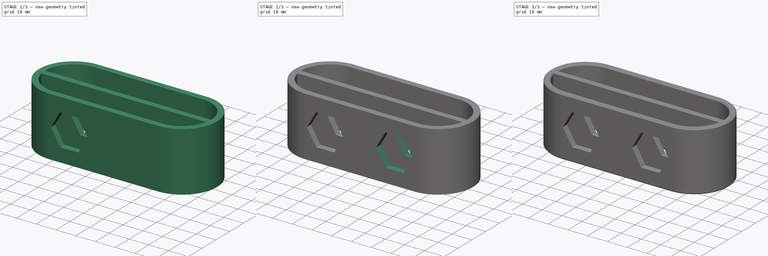
[diagram: build sequence overview — one tinted view per stage of 3, left to right]
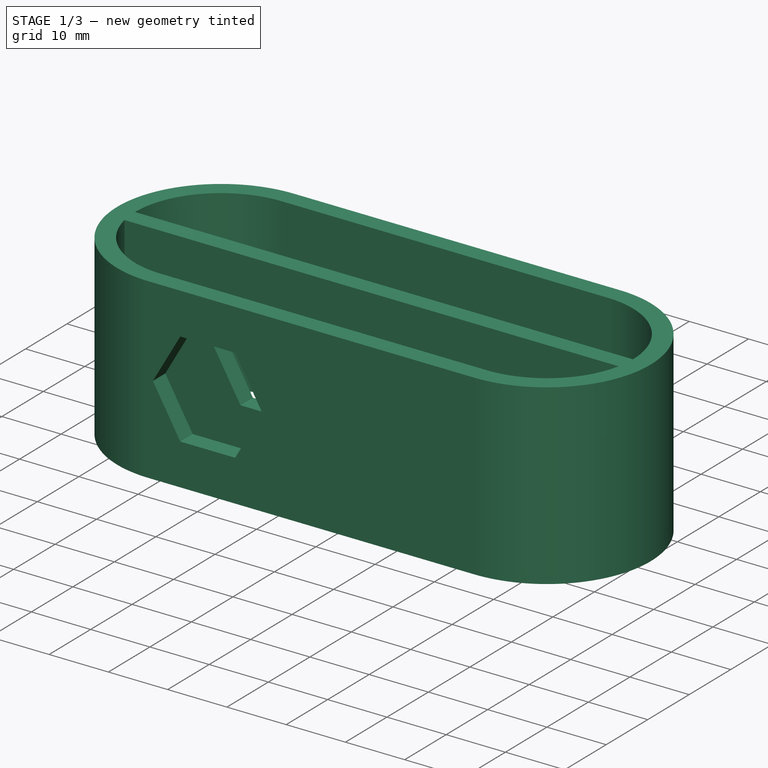
[diagram: stage 1 of 3 — iso view after this stage's code; geometry added in this stage tinted green]
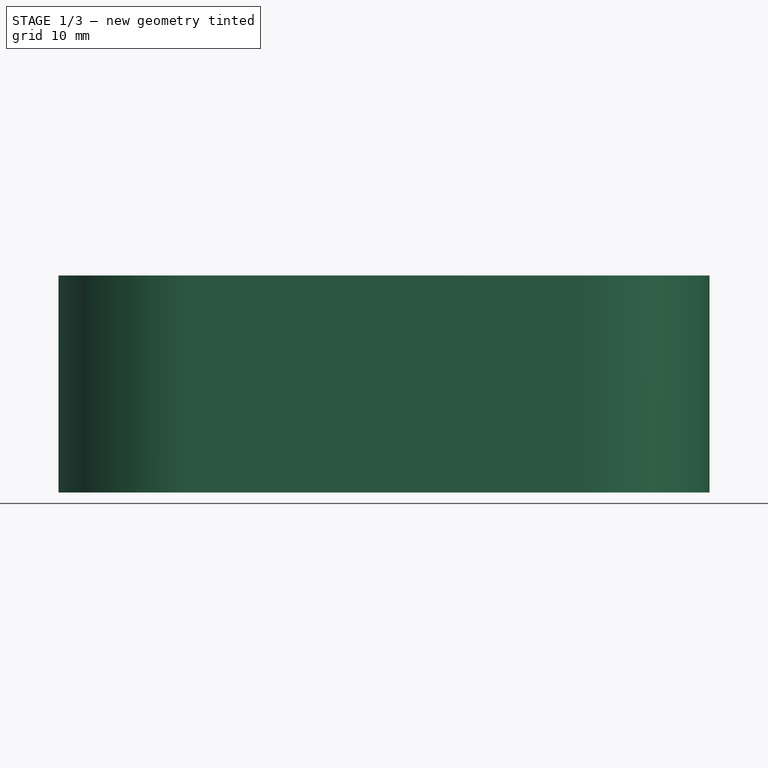
[diagram: stage 1 of 3 — front view after this stage's code; geometry added in this stage tinted green]
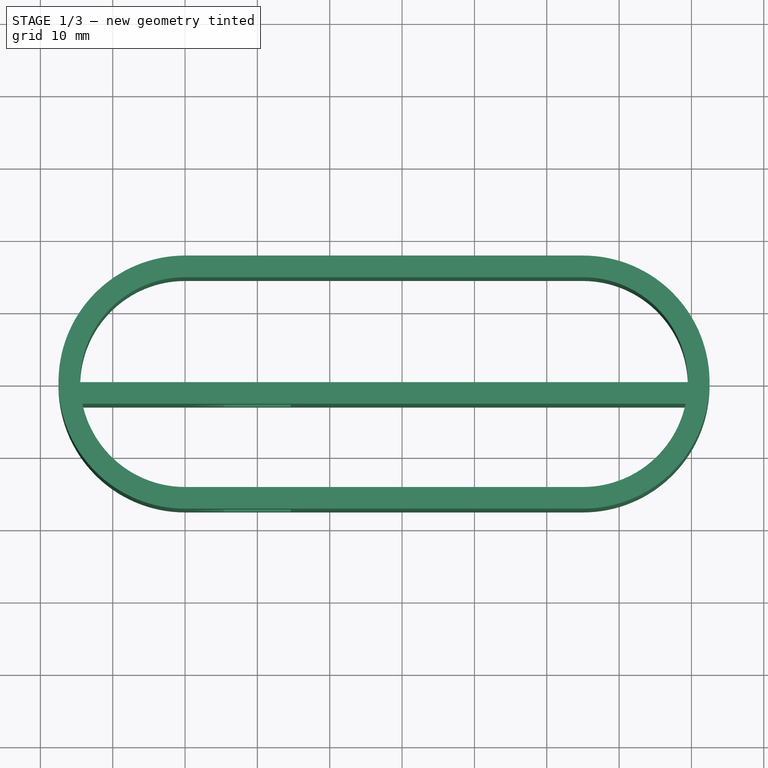
[diagram: stage 1 of 3 — top view after this stage's code; geometry added in this stage tinted green]
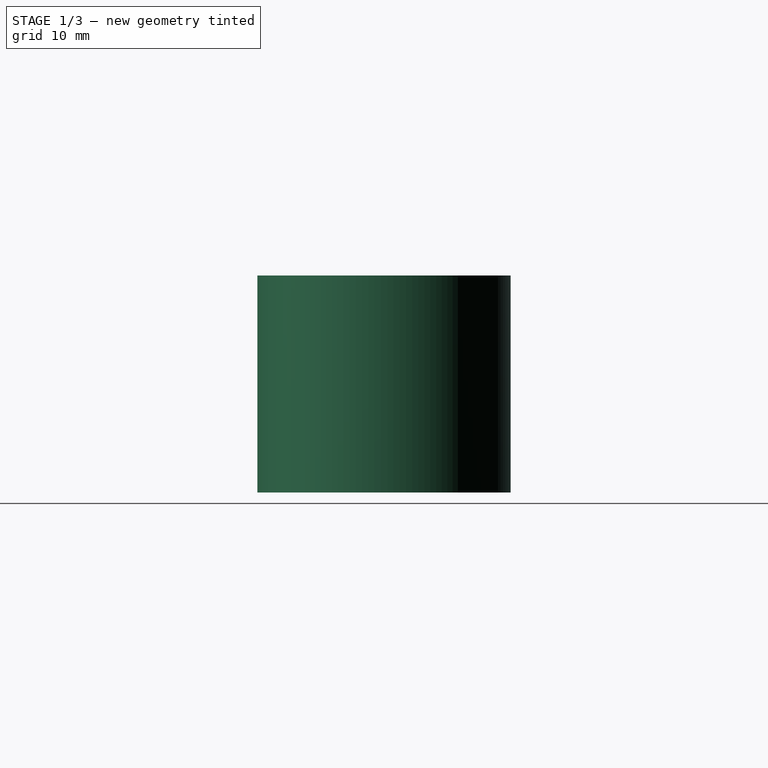
[diagram: stage 1 of 3 — right view after this stage's code; geometry added in this stage tinted green]
FCSTD DOCUMENT  (FreeCAD 0.18R16093 (Git))
Label: pb-v5-pour2
License: All rights reserved
LicenseURL: http://en.wikipedia.org/wiki/All_rights_reserved
objects: Sketcher::SketchObject×3, PartDesign::Pad×2, PartDesign::LinearPattern×2, PartDesign::Pocket×1, PartDesign::Draft×1, PartDesign::Chamfer×1, PartDesign::Body×1
note: 14 computed .brp shape members not serialized (recipe doc carries the construction recipe); baked Part::Feature solids carry a one-line shape summary decoded from their .brp

FEATURE [Sketcher::SketchObject] Sketch
  MapMode = 5
  Support = -> [XY_Plane]
  sketch-geometry (12):
    g0: ArcOfCircle CenterX=0 CenterY=0 CenterZ=0 NormalX=0 NormalY=0 NormalZ=1 AngleXU=0 Radius=14.5 StartAngle=1.5708 EndAngle=3.14159
    g1: ArcOfCircle CenterX=55 CenterY=-6e-16 CenterZ=0 NormalX=0 NormalY=0 NormalZ=1 AngleXU=0 Radius=14.5 StartAngle=4.71239 EndAngle=6.07478
    g2: LineSegment StartX=-2.7e-15 StartY=-14.5 StartZ=0 EndX=55 EndY=-14.5 EndZ=0
    g3: LineSegment StartX=-2.3e-15 StartY=14.5 StartZ=0 EndX=55 EndY=14.5 EndZ=0
    g4: ArcOfCircle CenterX=0 CenterY=0 CenterZ=0 NormalX=0 NormalY=0 NormalZ=1 AngleXU=0 Radius=17.5 StartAngle=1.5708 EndAngle=4.71239
    g5: ArcOfCircle CenterX=55 CenterY=-6e-16 CenterZ=0 NormalX=0 NormalY=0 NormalZ=1 AngleXU=0 Radius=17.5 StartAngle=4.71239 EndAngle=7.85398
    g6: LineSegment StartX=1.0693e-12 StartY=-17.5 StartZ=0 EndX=55 EndY=-17.5 EndZ=0
    g7: LineSegment StartX=-4.9e-15 StartY=17.5 StartZ=0 EndX=55 EndY=17.5 EndZ=0
    g8: LineSegment StartX=-14.5 StartY=0 StartZ=0 EndX=69.5 EndY=0 EndZ=0
    g9: LineSegment StartX=-14.1863 StartY=-3 StartZ=0 EndX=69.1863 EndY=-3 EndZ=0
    g10: ArcOfCircle CenterX=0 CenterY=0 CenterZ=0 NormalX=0 NormalY=0 NormalZ=1 AngleXU=0 Radius=14.5 StartAngle=3.34999 EndAngle=4.71239
    g11: ArcOfCircle CenterX=55 CenterY=-6e-16 CenterZ=0 NormalX=0 NormalY=0 NormalZ=1 AngleXU=0 Radius=14.5 StartAngle=0 EndAngle=1.5708
  constraints (31):
    c: Tangent(g0,g3) = 1.5708
    c: Coincident(g10,g2) = -1.5708
    c: Tangent(g2,g1) = -1.5708
    c: Coincident(g3,g11) = 1.5708
    c: Horizontal(g2)
    c: Equal(g0,g1)
    c: Coincident(g0,g-1)
    c: Tangent(g4,g7) = 1.5708
    c: Tangent(g4,g6) = -1.5708
    c: Tangent(g6,g5) = -1.5708
    c: Tangent(g7,g5) = 1.5708
    c: Horizontal(g6)
    c: Coincident(g4,g0)
    c: Coincident(g5,g1)
    c: Horizontal(g8)
    c: Horizontal(g9)
    c: DistanceY(g0,g4) = 3
    c: DistanceY(g10,g0) = 29
    c: DistanceX(g4,g5) = 55
    c: Equal(g0,g10)
    c: Coincident(g0,g8)
    c: Coincident(g10,g9)
    c: Coincident(g0,g10)
    c: DistanceY(g9,g0) = 3
    c: PointOnObject(g0,g-1)
    c: PointOnObject(g2,g-2)
    c: Equal(g1,g11)
    c: Coincident(g1,g9)
    c: Coincident(g11,g8)
    c: Coincident(g1,g11)
    c: Horizontal(g3)
FEATURE [PartDesign::Pad] Pad
  Length = 30
  Length2 = 100
  Profile = -> Sketch
  Type = 0
FEATURE [Sketcher::SketchObject] Sketch001
  MapMode = 5
  Placement = pos=(0,-17.5,0) rot=(1,0,0;1.5708rad)
  Support = -> [Pad]
  sketch-geometry (7):
    g0: LineSegment StartX=19.25 StartY=15 StartZ=0 EndX=14.625 EndY=23.0107 EndZ=0
    g1: LineSegment StartX=14.625 StartY=23.0107 StartZ=0 EndX=5.375 EndY=23.0107 EndZ=0
    g2: LineSegment StartX=5.375 StartY=23.0107 StartZ=0 EndX=0.75 EndY=15 EndZ=0
    g3: LineSegment StartX=0.75 StartY=15 StartZ=0 EndX=5.375 EndY=6.98927 EndZ=0
    g4: LineSegment StartX=5.375 StartY=6.98927 StartZ=0 EndX=14.625 EndY=6.98927 EndZ=0
    g5: LineSegment StartX=14.625 StartY=6.98927 StartZ=0 EndX=19.25 EndY=15 EndZ=0
    g6: Circle [constr] CenterX=10 CenterY=15 CenterZ=0 NormalX=0 NormalY=0 NormalZ=1 AngleXU=0 Radius=9.25
  constraints (17):
    c: Coincident(g0,g1)
    c: Coincident(g1,g2)
    c: Coincident(g2,g3)
    c: Coincident(g3,g4)
    c: Coincident(g4,g5)
    c: Coincident(g5,g0)
    c: Equal(g0, g1-g5) x5
    c: PointOnObject(g0,g6)
    c: PointOnObject(g1,g6)
    c: PointOnObject(g2,g6)
    c: PointOnObject(g3,g6)
    c: PointOnObject(g4,g6)
    c: PointOnObject(g5,g6)
    c: Horizontal(g1)
    c: Diameter(g6) = 18.5
    c: DistanceY(g-1,g6) = 15
    c: DistanceX(g-1,g6) = 10
FEATURE [PartDesign::Pocket] Pocket
  BaseFeature = -> Pad
  Length = 0
  Length2 = 100
  Profile = -> Sketch001
  Type = 3
  UpToFace = -> Pad [Face7]
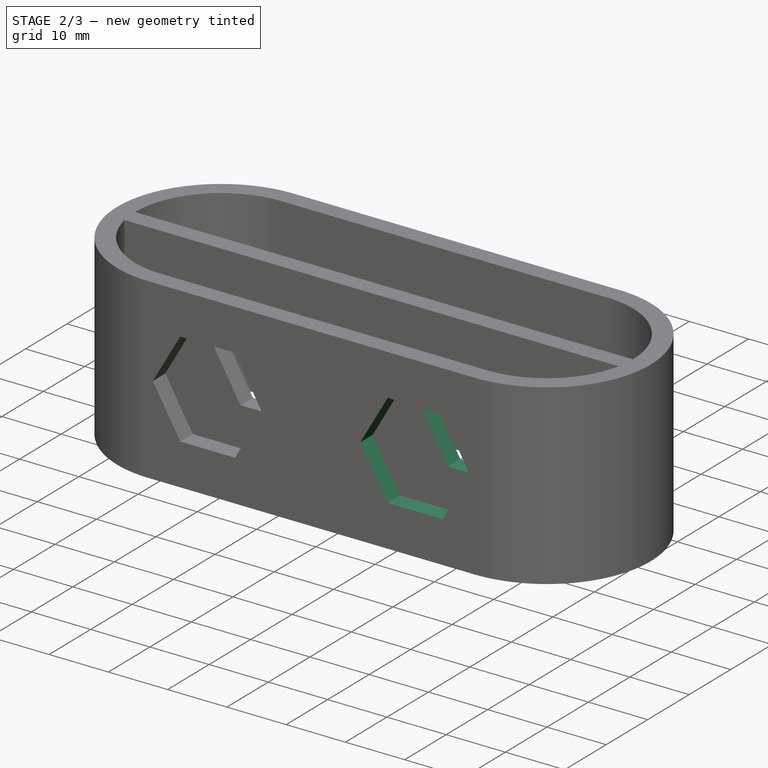
[diagram: stage 2 of 3 — iso view after this stage's code; geometry added in this stage tinted green]
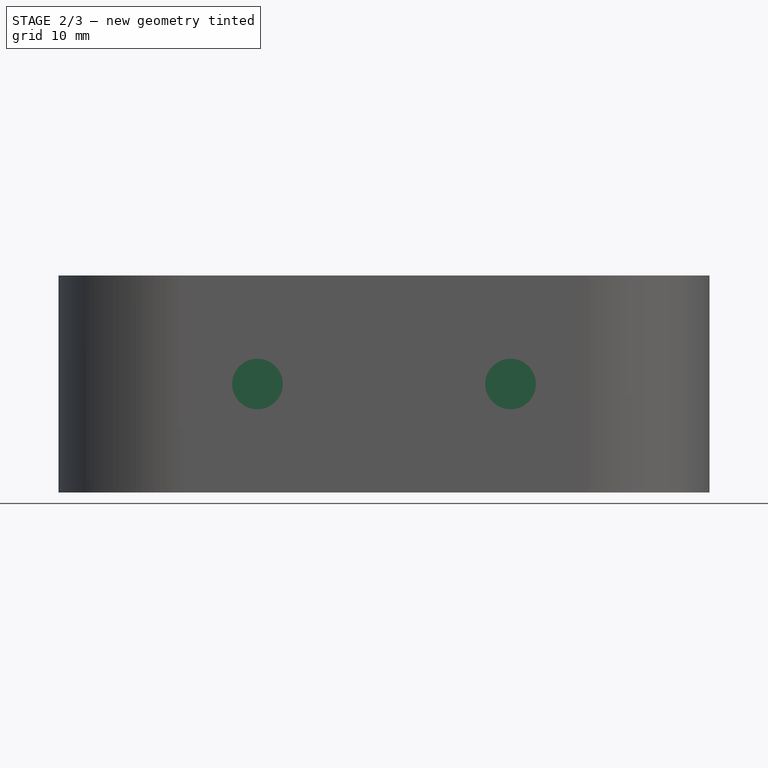
[diagram: stage 2 of 3 — front view after this stage's code; geometry added in this stage tinted green]
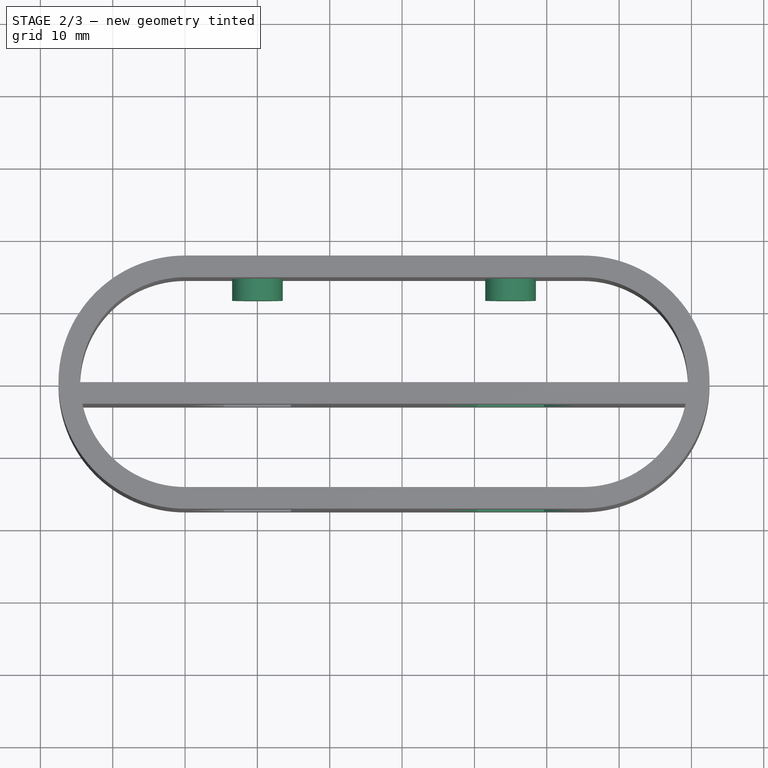
[diagram: stage 2 of 3 — top view after this stage's code; geometry added in this stage tinted green]
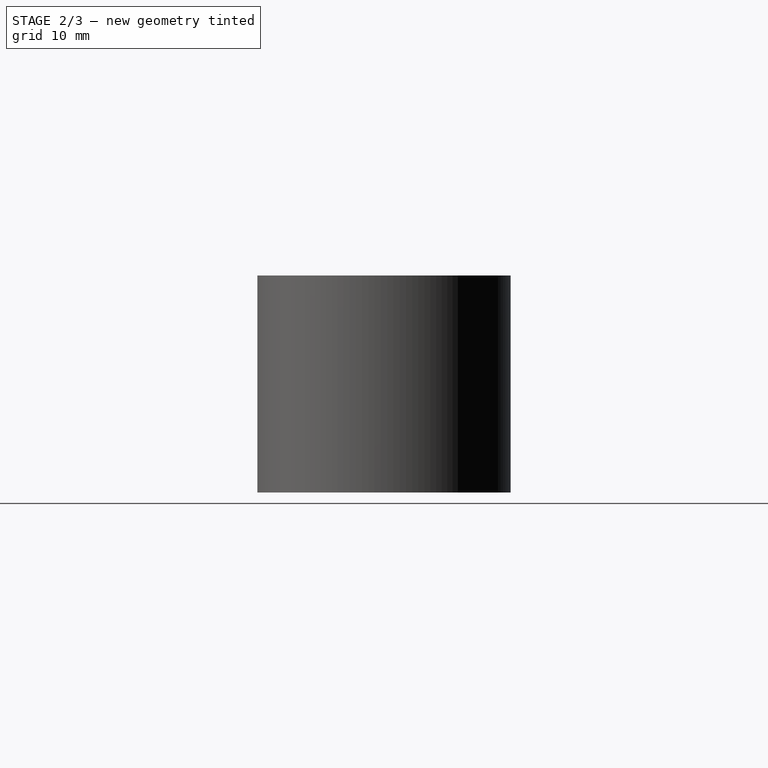
[diagram: stage 2 of 3 — right view after this stage's code; geometry added in this stage tinted green]
FEATURE [Sketcher::SketchObject] Sketch002
  MapMode = 5
  Placement = pos=(0,14.5,0) rot=(1,0,0;1.5708rad)
  sketch-geometry (1):
    g0: Circle CenterX=10 CenterY=15 CenterZ=0 NormalX=0 NormalY=0 NormalZ=1 AngleXU=0 Radius=3.5
  constraints (3):
    c: DistanceY(g-1,g0) = 15
    c: DistanceX(g-1,g0) = 10
    c: Diameter(g0) = 7
FEATURE [PartDesign::Pad] Pad001
  BaseFeature = -> Pocket
  Length = 3
  Length2 = 100
  Profile = -> Sketch002
  Type = 0
FEATURE [PartDesign::LinearPattern] LinearPattern
  BaseFeature = -> Pad001
  Direction = -> Sketch001 [H_Axis]
  Length = 35
  Occurrences = 2
  Originals = -> [Pocket]
FEATURE [PartDesign::LinearPattern] LinearPattern001
  BaseFeature = -> LinearPattern
  Direction = -> Sketch002 [H_Axis]
  Length = 35
  Occurrences = 2
  Originals = -> [Pad001]
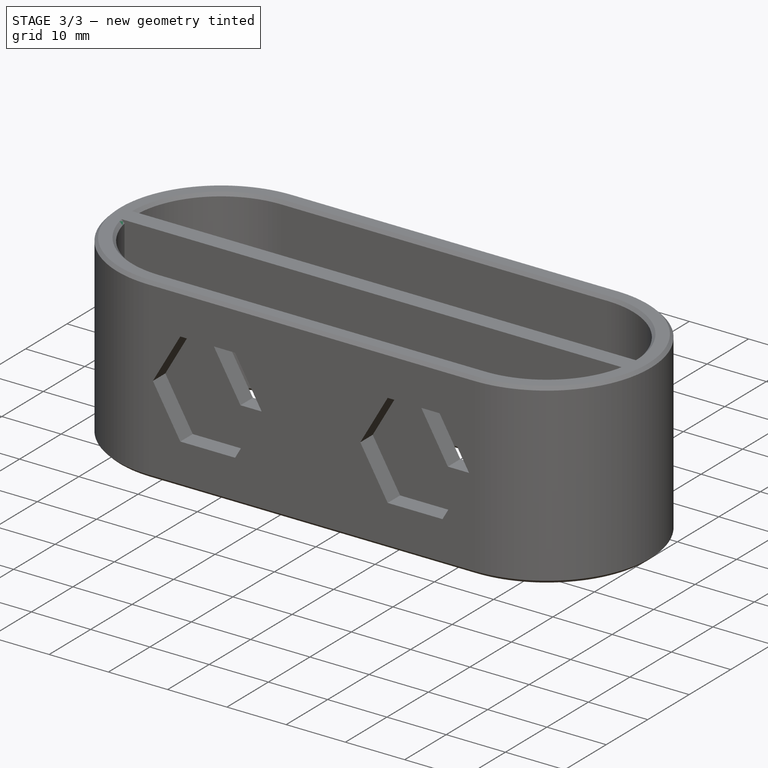
[diagram: stage 3 of 3 — iso view after this stage's code; geometry added in this stage tinted green]
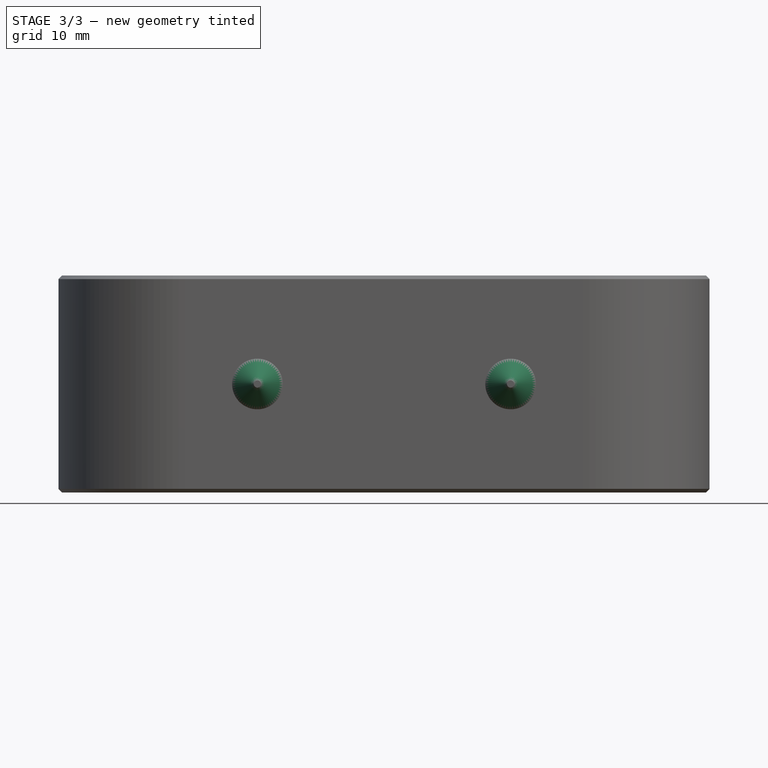
[diagram: stage 3 of 3 — front view after this stage's code; geometry added in this stage tinted green]
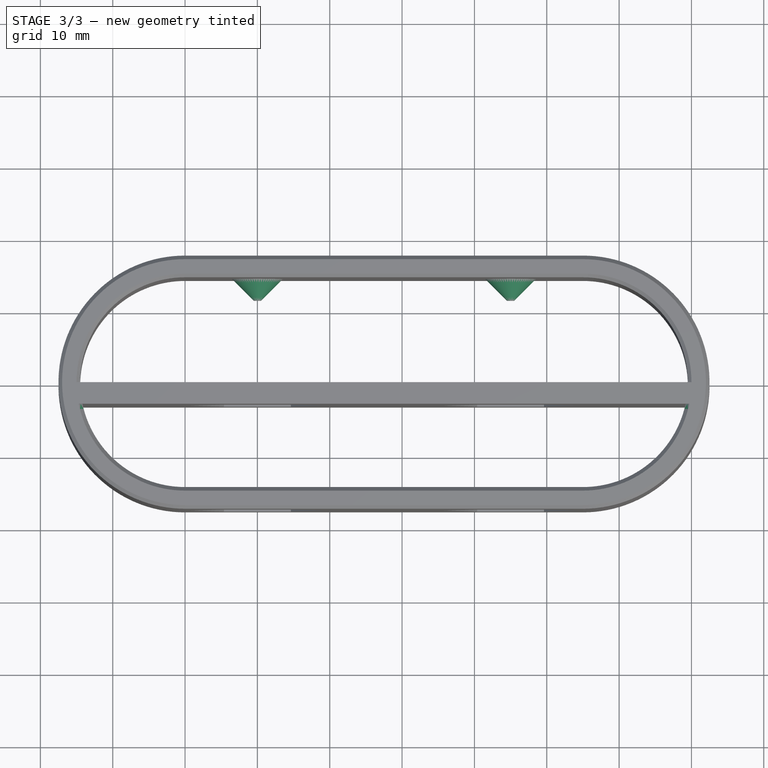
[diagram: stage 3 of 3 — top view after this stage's code; geometry added in this stage tinted green]
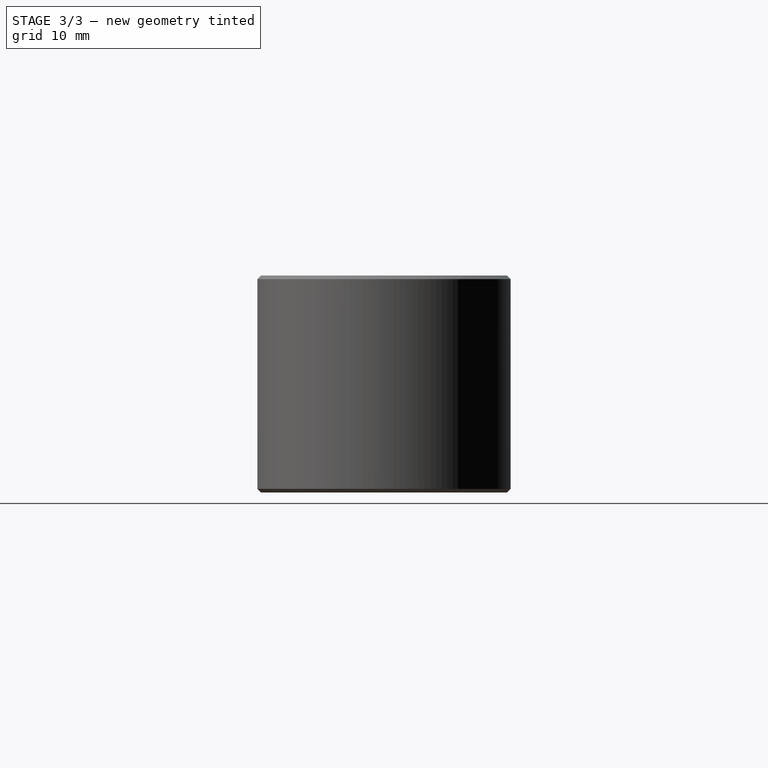
[diagram: stage 3 of 3 — right view after this stage's code; geometry added in this stage tinted green]
FEATURE [PartDesign::Draft] Draft
  Angle = 45
  Base = -> LinearPattern001 [Face27,Face28]
  BaseFeature = -> LinearPattern001
  NeutralPlane = -> LinearPattern001 [Face19]
  Reversed = true
FEATURE [PartDesign::Chamfer] Chamfer
  Base = -> Draft [Edge4,Edge38,Edge36,Edge3,Edge29,Edge27]
  BaseFeature = -> Draft
  Size = 0.5
FEATURE [PartDesign::Body] Body
  Group = -> [Sketch,Pad,Sketch001,Pocket,Sketch002,Pad001,LinearPattern,LinearPattern001,Draft,Chamfer]
  Origin = -> Origin
  Tip = -> Chamfer
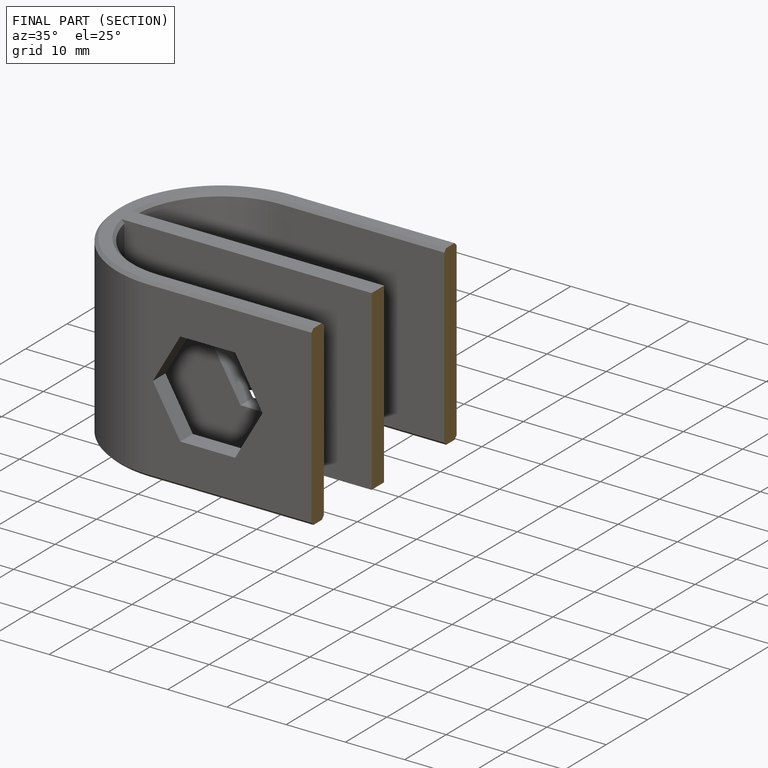
[diagram: finished part — half-section view (interior)]
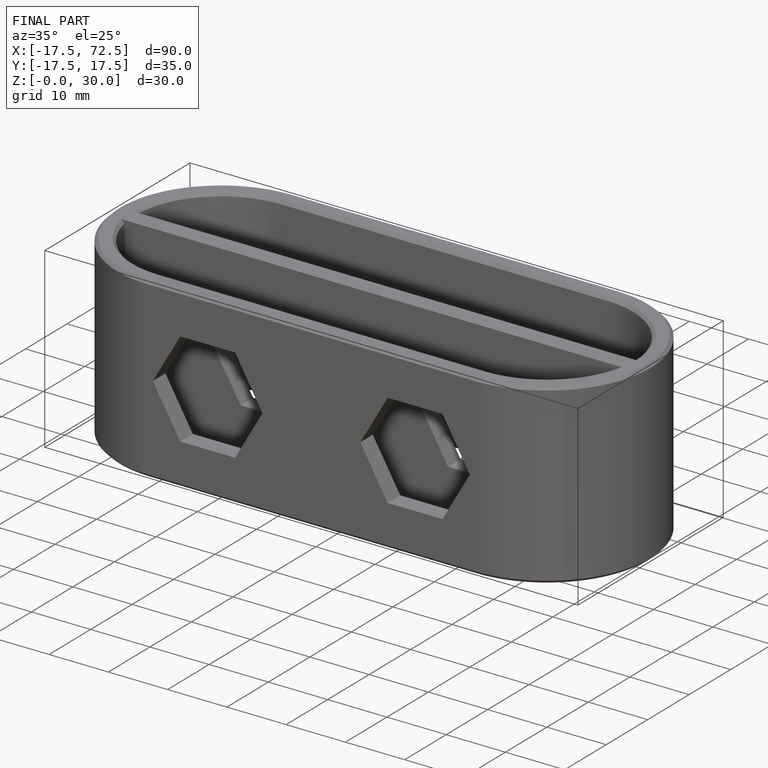
[diagram: finished part — iso view with bounding-box wireframe]
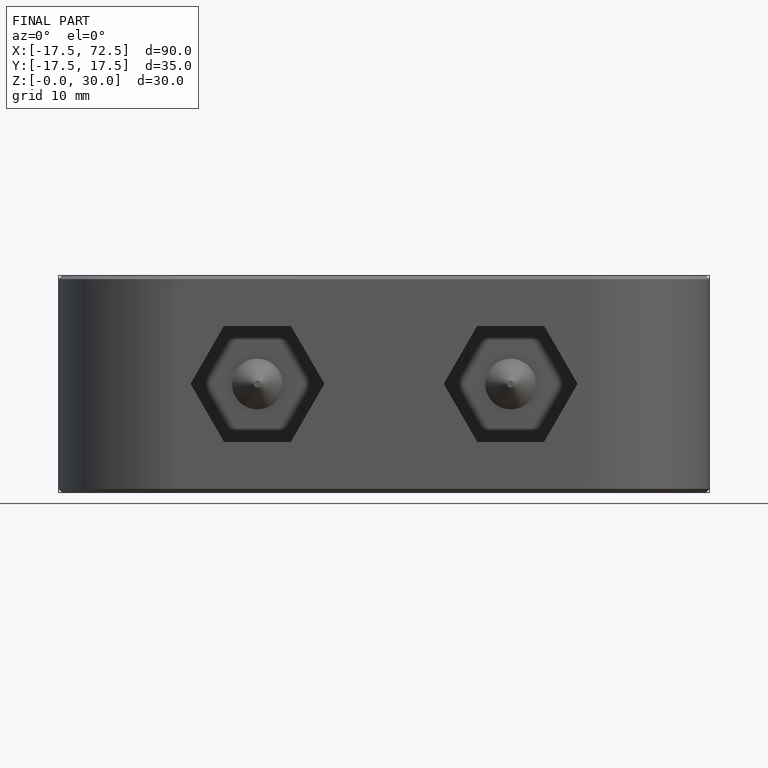
[diagram: finished part — front view with bounding-box wireframe]
